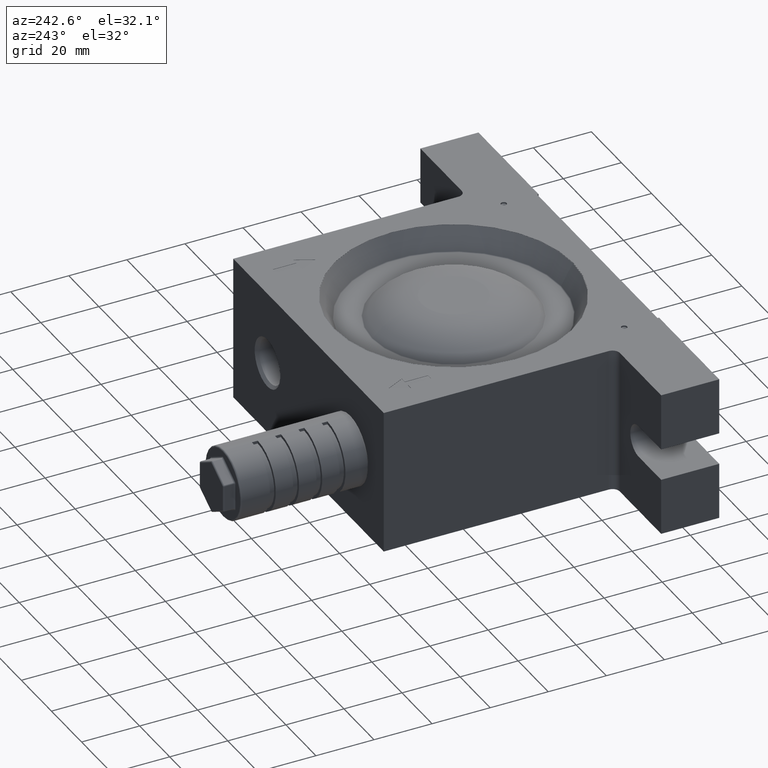
[diagram: clean part render]
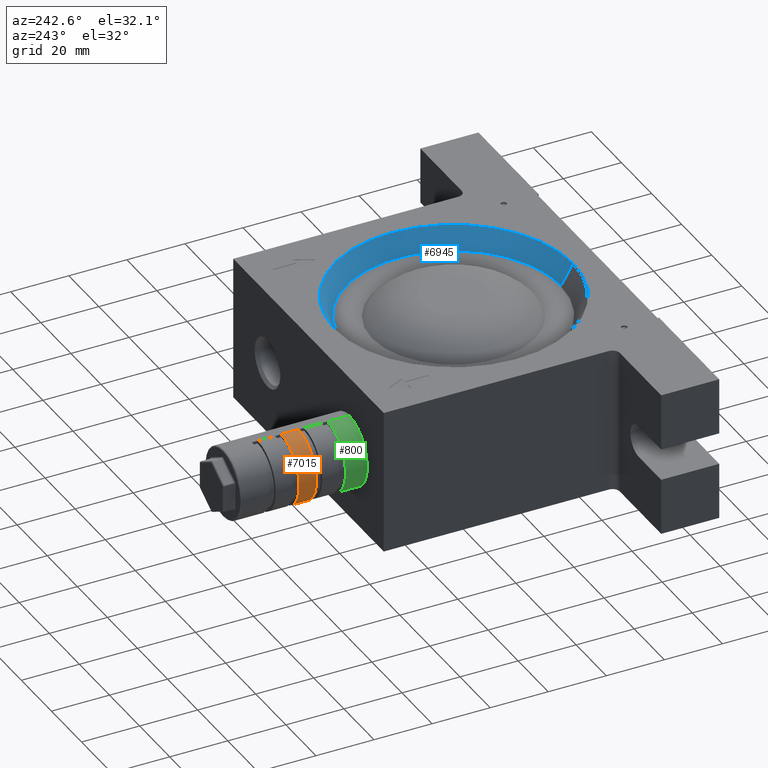
[diagram: same view with three faces highlighted in distinct colors, each labeled with its STEP entity id]
A machine part, auxiliary view with three faces highlighted in distinct colors.
Their STEP definitions:

[orange] entity #7015 — the highlighted cylindrical surface (partial cylindrical patch) has radius 12 mm, axis along (0, -1, 0).
#18 = LINE ( 'NONE', #3599, #5607 ) ;
#185 = VERTEX_POINT ( 'NONE', #2192 ) ;
#712 = AXIS2_PLACEMENT_3D ( 'NONE', #2961, #3010, #6740 ) ;
#733 = CARTESIAN_POINT ( 'NONE',  ( -28.00000000000000000, 74.00000000000000000, 0.0000000000000000000 ) ) ;
#877 = EDGE_LOOP ( 'NONE', ( #2629, #3351, #1735, #5752 ) ) ;
#1251 = AXIS2_PLACEMENT_3D ( 'NONE', #2456, #5805, #4664 ) ;
#1266 = DIRECTION ( 'NONE',  ( 0.0000000000000000000, 0.0000000000000000000, -1.000000000000000000 ) ) ;
#1735 = ORIENTED_EDGE ( 'NONE', *, *, #5173, .T. ) ;
#1754 = CARTESIAN_POINT ( 'NONE',  ( -28.00000000000000000, 68.00000000000000000, 12.00000000000000000 ) ) ;
#1845 = CIRCLE ( 'NONE', #712, 12.00000000000000000 ) ;
#1853 = DIRECTION ( 'NONE',  ( 0.0000000000000000000, -1.000000000000000000, 0.0000000000000000000 ) ) ;
#2023 = CARTESIAN_POINT ( 'NONE',  ( -28.00000000000000000, 74.00000000000000000, 12.00000000000000000 ) ) ;
#2192 = CARTESIAN_POINT ( 'NONE',  ( -28.00000000000000000, 74.00000000000000000, -12.00000000000000000 ) ) ;
#2311 = CARTESIAN_POINT ( 'NONE',  ( -28.00000000000000000, 94.00000000000000000, 12.00000000000000000 ) ) ;
#2456 = CARTESIAN_POINT ( 'NONE',  ( -28.00000000000000000, 94.00000000000000000, 0.0000000000000000000 ) ) ;
#2522 = CARTESIAN_POINT ( 'NONE',  ( -28.00000000000000000, 68.00000000000000000, -12.00000000000000000 ) ) ;
#2629 = ORIENTED_EDGE ( 'NONE', *, *, #6253, .F. ) ;
#2961 = CARTESIAN_POINT ( 'NONE',  ( -28.00000000000000000, 68.00000000000000000, 0.0000000000000000000 ) ) ;
#3010 = DIRECTION ( 'NONE',  ( 0.0000000000000000000, 1.000000000000000000, 0.0000000000000000000 ) ) ;
#3351 = ORIENTED_EDGE ( 'NONE', *, *, #6457, .T. ) ;
#3490 = VERTEX_POINT ( 'NONE', #1754 ) ;
#3599 = CARTESIAN_POINT ( 'NONE',  ( -28.00000000000000000, 94.00000000000000000, -12.00000000000000000 ) ) ;
#3745 = CIRCLE ( 'NONE', #5145, 12.00000000000000000 ) ;
#3821 = DIRECTION ( 'NONE',  ( 0.0000000000000000000, -1.000000000000000000, 0.0000000000000000000 ) ) ;
#3987 = EDGE_CURVE ( 'NONE', #4320, #3490, #6864, .T. ) ;
#4185 = VERTEX_POINT ( 'NONE', #2522 ) ;
#4297 = VECTOR ( 'NONE', #3821, 1000.000000000000000 ) ;
#4320 = VERTEX_POINT ( 'NONE', #2023 ) ;
#4516 = DIRECTION ( 'NONE',  ( 0.0000000000000000000, 1.000000000000000000, 0.0000000000000000000 ) ) ;
#4664 = DIRECTION ( 'NONE',  ( 0.0000000000000000000, 0.0000000000000000000, 1.000000000000000000 ) ) ;
#5145 = AXIS2_PLACEMENT_3D ( 'NONE', #733, #4516, #1266 ) ;
#5173 = EDGE_CURVE ( 'NONE', #4185, #3490, #1845, .T. ) ;
#5429 = CYLINDRICAL_SURFACE ( 'NONE', #1251, 12.00000000000000000 ) ;
#5607 = VECTOR ( 'NONE', #1853, 1000.000000000000000 ) ;
#5610 = FACE_OUTER_BOUND ( 'NONE', #877, .T. ) ;
#5752 = ORIENTED_EDGE ( 'NONE', *, *, #3987, .F. ) ;
#5805 = DIRECTION ( 'NONE',  ( 0.0000000000000000000, -1.000000000000000000, 0.0000000000000000000 ) ) ;
#6253 = EDGE_CURVE ( 'NONE', #185, #4320, #3745, .T. ) ;
#6457 = EDGE_CURVE ( 'NONE', #185, #4185, #18, .T. ) ;
#6740 = DIRECTION ( 'NONE',  ( 0.0000000000000000000, 0.0000000000000000000, -1.000000000000000000 ) ) ;
#6864 = LINE ( 'NONE', #2311, #4297 ) ;
#7015 = ADVANCED_FACE ( 'NONE', ( #5610 ), #5429, .T. ) ;

[blue] entity #6945 — the highlighted conical surface has half-angle 30 deg.
#84 = DIRECTION ( 'NONE',  ( 1.665334536937734800E-016, 1.000000000000000000, -9.365206889583195800E-017 ) ) ;
#104 = LINE ( 'NONE', #6241, #280 ) ;
#139 = CARTESIAN_POINT ( 'NONE',  ( 8.290796058586279900E-016, -2.585824891883359800E-015, 18.00000000000000000 ) ) ;
#280 = VECTOR ( 'NONE', #4174, 1000.000000000000000 ) ;
#383 = VERTEX_POINT ( 'NONE', #2256 ) ;
#649 = DIRECTION ( 'NONE',  ( 9.071690638293561100E-017, 0.4999999999999996100, 0.8660254037844389300 ) ) ;
#659 = CARTESIAN_POINT ( 'NONE',  ( -1.098493650755524200E-014, -41.08758437086788000, 25.00000000000000700 ) ) ;
#763 = DIRECTION ( 'NONE',  ( 8.602726321297810600E-018, 1.224606353822375800E-016, 1.000000000000000000 ) ) ;
#783 = FACE_OUTER_BOUND ( 'NONE', #2420, .T. ) ;
#786 = DIRECTION ( 'NONE',  ( 1.665334536937734600E-016, 1.000000000000000000, -9.401837931044403000E-017 ) ) ;
#871 = EDGE_CURVE ( 'NONE', #996, #383, #2403, .T. ) ;
#964 = EDGE_CURVE ( 'NONE', #383, #3484, #104, .T. ) ;
#996 = VERTEX_POINT ( 'NONE', #4122 ) ;
#1815 = ORIENTED_EDGE ( 'NONE', *, *, #7006, .T. ) ;
#2256 = CARTESIAN_POINT ( 'NONE',  ( -1.043106002386019100E-014, -37.04613248654055000, 18.00000000000000400 ) ) ;
#2399 = ORIENTED_EDGE ( 'NONE', *, *, #3955, .F. ) ;
#2403 = CIRCLE ( 'NONE', #3707, 37.04613248654055000 ) ;
#2420 = EDGE_LOOP ( 'NONE', ( #6978, #4662, #1815, #2399 ) ) ;
#2434 = DIRECTION ( 'NONE',  ( 8.602726321297810600E-018, 1.224606353822375800E-016, 1.000000000000000000 ) ) ;
#2867 = DIRECTION ( 'NONE',  ( -8.602726321297810600E-018, -1.224606353822375800E-016, -1.000000000000000000 ) ) ;
#2985 = DIRECTION ( 'NONE',  ( 1.665334536937734800E-016, 1.000000000000000000, -8.444027569587509400E-017 ) ) ;
#3484 = VERTEX_POINT ( 'NONE', #659 ) ;
#3707 = AXIS2_PLACEMENT_3D ( 'NONE', #139, #2867, #84 ) ;
#3883 = CARTESIAN_POINT ( 'NONE',  ( 6.972312279679199700E-015, 36.90179491924310200, 17.74999999999999600 ) ) ;
#3955 = EDGE_CURVE ( 'NONE', #996, #5592, #4661, .T. ) ;
#4122 = CARTESIAN_POINT ( 'NONE',  ( 6.998499994839326000E-015, 37.04613248654055000, 17.99999999999999600 ) ) ;
#4130 = AXIS2_PLACEMENT_3D ( 'NONE', #5075, #763, #786 ) ;
#4174 = DIRECTION ( 'NONE',  ( -1.370488872682053100E-016, -0.4999999999999993300, 0.8660254037844390400 ) ) ;
#4414 = CONICAL_SURFACE ( 'NONE', #4130, 36.90179491924310200, 0.5235987755982982600 ) ;
#4661 = LINE ( 'NONE', #3883, #5159 ) ;
#4662 = ORIENTED_EDGE ( 'NONE', *, *, #964, .T. ) ;
#4825 = CARTESIAN_POINT ( 'NONE',  ( 7.731756019322649300E-015, 41.08758437086788000, 24.99999999999999300 ) ) ;
#5075 = CARTESIAN_POINT ( 'NONE',  ( 8.269289242783040000E-016, -2.616440050728920100E-015, 17.75000000000000000 ) ) ;
#5159 = VECTOR ( 'NONE', #649, 999.9999999999998900 ) ;
#5592 = VERTEX_POINT ( 'NONE', #4825 ) ;
#5664 = CARTESIAN_POINT ( 'NONE',  ( 8.892986901077129600E-016, -1.728600444207695000E-015, 25.00000000000000000 ) ) ;
#5673 = CIRCLE ( 'NONE', #5724, 41.08758437086790100 ) ;
#5724 = AXIS2_PLACEMENT_3D ( 'NONE', #5664, #2434, #2985 ) ;
#6241 = CARTESIAN_POINT ( 'NONE',  ( -9.837620934186905800E-015, -36.90179491924310200, 17.75000000000000400 ) ) ;
#6945 = ADVANCED_FACE ( 'NONE', ( #783 ), #4414, .F. ) ;
#6978 = ORIENTED_EDGE ( 'NONE', *, *, #871, .T. ) ;
#7006 = EDGE_CURVE ( 'NONE', #3484, #5592, #5673, .T. ) ;

[green] entity #800 — the highlighted cylindrical surface (partial cylindrical patch) has radius 12 mm, axis along (0, -1, 0).
#79 = DIRECTION ( 'NONE',  ( 0.0000000000000000000, 0.0000000000000000000, -1.000000000000000000 ) ) ;
#202 = CARTESIAN_POINT ( 'NONE',  ( -28.00000000000000000, 94.00000000000000000, -12.00000000000000000 ) ) ;
#257 = EDGE_CURVE ( 'NONE', #529, #3220, #3844, .T. ) ;
#529 = VERTEX_POINT ( 'NONE', #1326 ) ;
#800 = ADVANCED_FACE ( 'NONE', ( #4339 ), #3665, .T. ) ;
#801 = EDGE_CURVE ( 'NONE', #1379, #4282, #6116, .T. ) ;
#980 = VECTOR ( 'NONE', #5121, 1000.000000000000000 ) ;
#1043 = CARTESIAN_POINT ( 'NONE',  ( -28.00000000000000000, 94.00000000000000000, 12.00000000000000000 ) ) ;
#1241 = CARTESIAN_POINT ( 'NONE',  ( -28.00000000000000000, 50.50000000000000000, -12.00000000000000000 ) ) ;
#1326 = CARTESIAN_POINT ( 'NONE',  ( -28.00000000000000000, 58.00000000000000000, -12.00000000000000000 ) ) ;
#1379 = VERTEX_POINT ( 'NONE', #5968 ) ;
#1417 = AXIS2_PLACEMENT_3D ( 'NONE', #5986, #6574, #3352 ) ;
#1647 = AXIS2_PLACEMENT_3D ( 'NONE', #6020, #3872, #79 ) ;
#1809 = AXIS2_PLACEMENT_3D ( 'NONE', #3776, #6966, #3216 ) ;
#2036 = CIRCLE ( 'NONE', #1647, 12.00000000000000000 ) ;
#2218 = ORIENTED_EDGE ( 'NONE', *, *, #257, .T. ) ;
#3216 = DIRECTION ( 'NONE',  ( 0.0000000000000000000, 0.0000000000000000000, 1.000000000000000000 ) ) ;
#3220 = VERTEX_POINT ( 'NONE', #1241 ) ;
#3352 = DIRECTION ( 'NONE',  ( 0.0000000000000000000, 0.0000000000000000000, -1.000000000000000000 ) ) ;
#3491 = EDGE_CURVE ( 'NONE', #529, #1379, #2036, .T. ) ;
#3594 = EDGE_LOOP ( 'NONE', ( #5273, #2218, #4938, #6179 ) ) ;
#3648 = CARTESIAN_POINT ( 'NONE',  ( -28.00000000000000000, 50.50000000000000000, 12.00000000000000000 ) ) ;
#3665 = CYLINDRICAL_SURFACE ( 'NONE', #1809, 12.00000000000000000 ) ;
#3776 = CARTESIAN_POINT ( 'NONE',  ( -28.00000000000000000, 94.00000000000000000, 0.0000000000000000000 ) ) ;
#3844 = LINE ( 'NONE', #202, #980 ) ;
#3872 = DIRECTION ( 'NONE',  ( 0.0000000000000000000, 1.000000000000000000, 0.0000000000000000000 ) ) ;
#4163 = VECTOR ( 'NONE', #4316, 1000.000000000000000 ) ;
#4282 = VERTEX_POINT ( 'NONE', #3648 ) ;
#4316 = DIRECTION ( 'NONE',  ( 0.0000000000000000000, -1.000000000000000000, 0.0000000000000000000 ) ) ;
#4339 = FACE_OUTER_BOUND ( 'NONE', #3594, .T. ) ;
#4938 = ORIENTED_EDGE ( 'NONE', *, *, #6196, .T. ) ;
#5121 = DIRECTION ( 'NONE',  ( 0.0000000000000000000, -1.000000000000000000, 0.0000000000000000000 ) ) ;
#5273 = ORIENTED_EDGE ( 'NONE', *, *, #3491, .F. ) ;
#5428 = CIRCLE ( 'NONE', #1417, 12.00000000000000000 ) ;
#5968 = CARTESIAN_POINT ( 'NONE',  ( -28.00000000000000000, 58.00000000000000000, 12.00000000000000000 ) ) ;
#5986 = CARTESIAN_POINT ( 'NONE',  ( -28.00000000000000000, 50.50000000000000000, 0.0000000000000000000 ) ) ;
#6020 = CARTESIAN_POINT ( 'NONE',  ( -28.00000000000000000, 58.00000000000000000, 0.0000000000000000000 ) ) ;
#6116 = LINE ( 'NONE', #1043, #4163 ) ;
#6179 = ORIENTED_EDGE ( 'NONE', *, *, #801, .F. ) ;
#6196 = EDGE_CURVE ( 'NONE', #3220, #4282, #5428, .T. ) ;
#6574 = DIRECTION ( 'NONE',  ( 0.0000000000000000000, 1.000000000000000000, 0.0000000000000000000 ) ) ;
#6966 = DIRECTION ( 'NONE',  ( 0.0000000000000000000, -1.000000000000000000, 0.0000000000000000000 ) ) ;